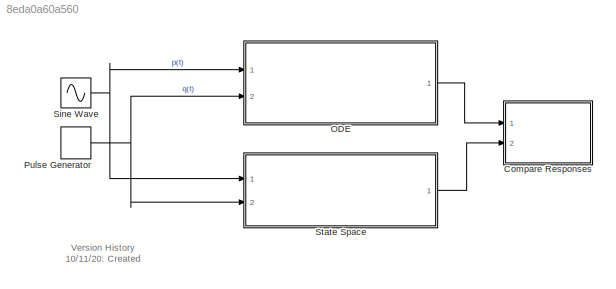
MODEL slx_8eda0a60a560
KIND model
CONFIG AbsTol = auto
CONFIG EnableMultiTasking = off
CONFIG FixedStep = auto
CONFIG MaxStep = auto
CONFIG MinStep = auto
CONFIG RelTol = 1e-3
CONFIG SampleTimeConstraint = Unconstrained
CONFIG Solver = VariableStepAuto
CONFIG SolverName = VariableStepAuto
CONFIG StartTime = 0.0
CONFIG StopTime = 1
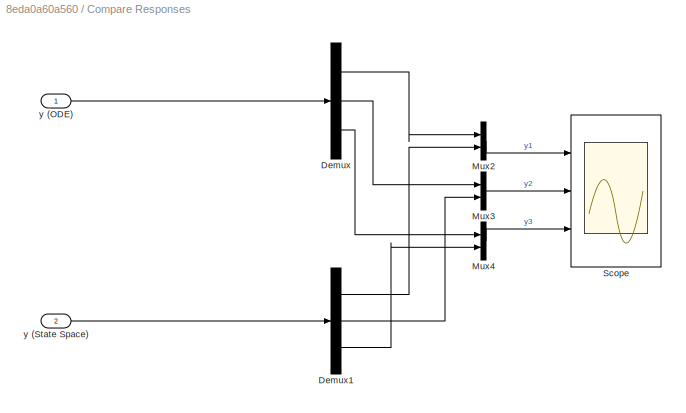
BLOCK [SubSystem] Compare Responses
  Ports = [2]
  RequestExecContextInheritance = off
BLOCK [Demux] Compare Responses/Demux
  DisplayOption = bar
  Outputs = 3
  Ports = [1, 3]
BLOCK [Demux] Compare Responses/Demux1
  DisplayOption = bar
  Outputs = 3
  Ports = [1, 3]
BLOCK [Mux] Compare Responses/Mux2
  DisplayOption = bar
  Inputs = 2
  Ports = [2, 1]
BLOCK [Mux] Compare Responses/Mux3
  DisplayOption = bar
  Inputs = 2
  Ports = [2, 1]
BLOCK [Mux] Compare Responses/Mux4
  DisplayOption = bar
  Inputs = 2
  Ports = [2, 1]
BLOCK [Scope] Compare Responses/Scope
  Floating = off
  NumInputPorts = 3
  Ports = [3]
  ScopeSpecificationString = Simulink.scopes.TimeScopeBlockCfg('CurrentConfiguration', extmgr.ConfigurationSet(extmgr.Configuration('Core','General UI',true),extmgr.Configuration('Core','Source UI',true),extmgr.Configuration('Sources','WiredSimulink',true),extmgr.Configuration('Visuals','Time Domain',true,'SerializedDisplays',{struct('MinYLimReal','0.85399','MaxYLimReal','2.31405','YLabelReal','','MinYLimMag','0.85399','MaxYL...<+2740ch>
BLOCK [Inport] Compare Responses/y (ODE)
  IconDisplay = Port number
BLOCK [Inport] Compare Responses/y (State Space)
  IconDisplay = Port number
  Port = 2
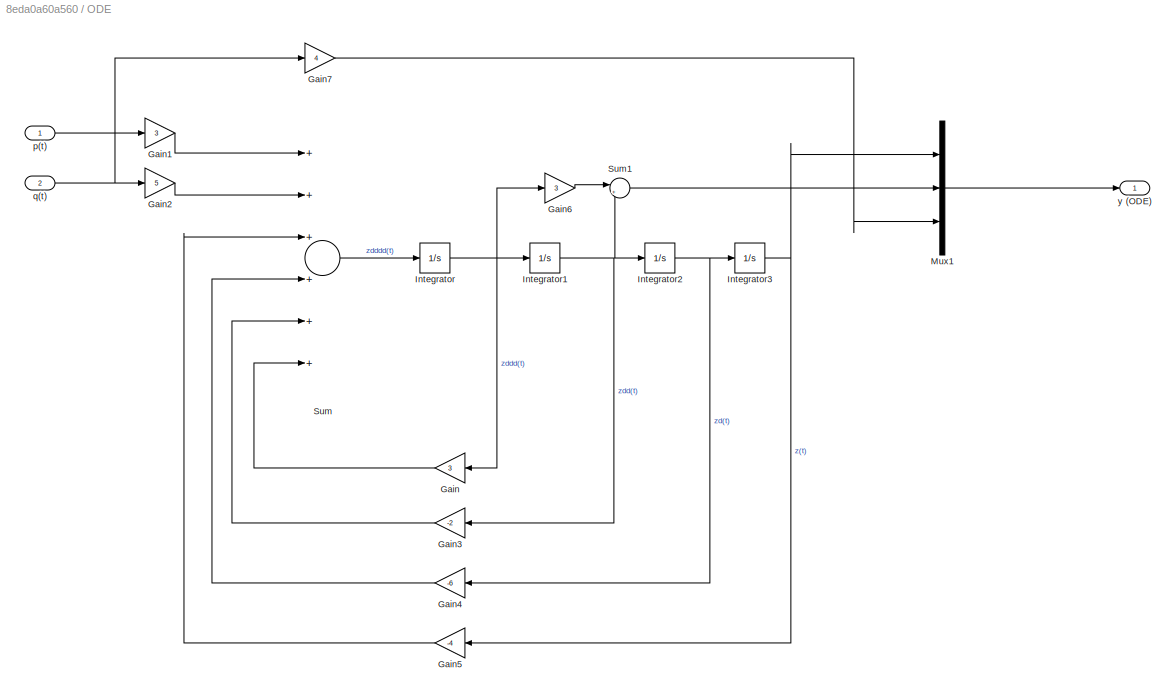
BLOCK [SubSystem] ODE
  Ports = [2, 1]
  RequestExecContextInheritance = off
BLOCK [Gain] ODE/Gain
  Gain = 3
  OutDataTypeStr = Inherit: Inherit via internal rule
  ParamDataTypeStr = Inherit: Inherit via internal rule
  SaturateOnIntegerOverflow = off
BLOCK [Gain] ODE/Gain1
  Gain = 3
  OutDataTypeStr = Inherit: Inherit via internal rule
  ParamDataTypeStr = Inherit: Inherit via internal rule
  SaturateOnIntegerOverflow = off
BLOCK [Gain] ODE/Gain2
  Gain = 5
  OutDataTypeStr = Inherit: Inherit via internal rule
  ParamDataTypeStr = Inherit: Inherit via internal rule
  SaturateOnIntegerOverflow = off
BLOCK [Gain] ODE/Gain3
  Gain = -2
  OutDataTypeStr = Inherit: Inherit via internal rule
  ParamDataTypeStr = Inherit: Inherit via internal rule
  SaturateOnIntegerOverflow = off
BLOCK [Gain] ODE/Gain4
  Gain = -6
  OutDataTypeStr = Inherit: Inherit via internal rule
  ParamDataTypeStr = Inherit: Inherit via internal rule
  SaturateOnIntegerOverflow = off
BLOCK [Gain] ODE/Gain5
  Gain = -4
  OutDataTypeStr = Inherit: Inherit via internal rule
  ParamDataTypeStr = Inherit: Inherit via internal rule
  SaturateOnIntegerOverflow = off
BLOCK [Gain] ODE/Gain6
  Gain = 3
  OutDataTypeStr = Inherit: Inherit via internal rule
  ParamDataTypeStr = Inherit: Inherit via internal rule
  SaturateOnIntegerOverflow = off
BLOCK [Gain] ODE/Gain7
  Gain = 4
  OutDataTypeStr = Inherit: Inherit via internal rule
  ParamDataTypeStr = Inherit: Inherit via internal rule
  SaturateOnIntegerOverflow = off
BLOCK [Integrator] ODE/Integrator
  InitialCondition = x0(4)
  Ports = [1, 1]
BLOCK [Integrator] ODE/Integrator1
  InitialCondition = x0(3)
  Ports = [1, 1]
BLOCK [Integrator] ODE/Integrator2
  InitialCondition = x0(2)
  Ports = [1, 1]
BLOCK [Integrator] ODE/Integrator3
  InitialCondition = x0(1)
  Ports = [1, 1]
BLOCK [Mux] ODE/Mux1
  DisplayOption = bar
  Inputs = 3
  Ports = [3, 1]
BLOCK [Sum] ODE/Sum
  InputSameDT = off
  Inputs = ++++++
  OutDataTypeStr = Inherit: Inherit via internal rule
  Ports = [6, 1]
  SaturateOnIntegerOverflow = off
BLOCK [Sum] ODE/Sum1
  IconShape = round
  InputSameDT = off
  Inputs = |++
  OutDataTypeStr = Inherit: Inherit via internal rule
  Ports = [2, 1]
  SaturateOnIntegerOverflow = off
BLOCK [Inport] ODE/p(t)
  IconDisplay = Port number
BLOCK [Inport] ODE/q(t)
  IconDisplay = Port number
  Port = 2
BLOCK [Outport] ODE/y (ODE)
  IconDisplay = Port number
BLOCK [DiscretePulseGenerator] Pulse Generator
  Period = 0.1
  Ports = [0, 1]
  PulseType = Time based
  PulseWidth = 25
BLOCK [Sin] Sine Wave
  Ports = [0, 1]
  SampleTime = 0
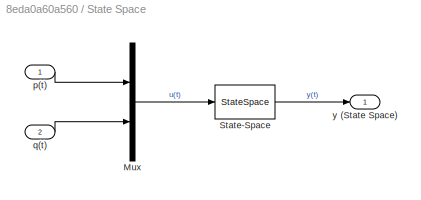
BLOCK [SubSystem] State Space
  Ports = [2, 1]
  RequestExecContextInheritance = off
BLOCK [Mux] State Space/Mux
  DisplayOption = bar
  Inputs = 2
  Ports = [2, 1]
BLOCK [StateSpace] State Space/State-Space
  A = A
  B = B
  C = C
  D = D
  InitialCondition = x0
  Ports = [1, 1]
BLOCK [Inport] State Space/p(t)
  IconDisplay = Port number
BLOCK [Inport] State Space/q(t)
  IconDisplay = Port number
  Port = 2
BLOCK [Outport] State Space/y (State Space)
  IconDisplay = Port number
ANNOTATION (root): Version History 10/11/20: Created
LINE Compare Responses/Demux1:1 -> Compare Responses/Mux2:2
LINE Compare Responses/Demux1:2 -> Compare Responses/Mux3:2
LINE Compare Responses/Demux1:3 -> Compare Responses/Mux4:2
LINE Compare Responses/Demux:1 -> Compare Responses/Mux2:1
LINE Compare Responses/Demux:2 -> Compare Responses/Mux3:1
LINE Compare Responses/Demux:3 -> Compare Responses/Mux4:1
LINE Compare Responses/Mux2:1 -> Compare Responses/Scope:1
LINE Compare Responses/Mux3:1 -> Compare Responses/Scope:2
LINE Compare Responses/Mux4:1 -> Compare Responses/Scope:3
LINE Compare Responses/y (ODE):1 -> Compare Responses/Demux:1
LINE Compare Responses/y (State Space):1 -> Compare Responses/Demux1:1
LINE ODE/Gain1:1 -> ODE/Sum:1
LINE ODE/Gain2:1 -> ODE/Sum:2
LINE ODE/Gain3:1 -> ODE/Sum:5
LINE ODE/Gain4:1 -> ODE/Sum:4
LINE ODE/Gain5:1 -> ODE/Sum:3
LINE ODE/Gain6:1 -> ODE/Sum1:1
LINE ODE/Gain7:1 -> ODE/Mux1:3
LINE ODE/Gain:1 -> ODE/Sum:6
NET ODE/Integrator1:1 -> ODE/Gain3:1, ODE/Integrator2:1, ODE/Sum1:2
NET ODE/Integrator2:1 -> ODE/Gain4:1, ODE/Integrator3:1
NET ODE/Integrator3:1 -> ODE/Gain5:1, ODE/Mux1:1
NET ODE/Integrator:1 -> ODE/Gain6:1, ODE/Gain:1, ODE/Integrator1:1
LINE ODE/Mux1:1 -> ODE/y (ODE):1
LINE ODE/Sum1:1 -> ODE/Mux1:2
LINE ODE/Sum:1 -> ODE/Integrator:1
LINE ODE/p(t):1 -> ODE/Gain1:1
NET ODE/q(t):1 -> ODE/Gain2:1, ODE/Gain7:1
LINE ODE:1 -> Compare Responses:1
NET Pulse Generator:1 -> ODE:2, State Space:2
NET Sine Wave:1 -> ODE:1, State Space:1
LINE State Space/Mux:1 -> State Space/State-Space:1
LINE State Space/State-Space:1 -> State Space/y (State Space):1
LINE State Space/p(t):1 -> State Space/Mux:1
LINE State Space/q(t):1 -> State Space/Mux:2
LINE State Space:1 -> Compare Responses:2
note: NET lines group one-source signal fan-out (src -> all destinations, sorted); 1:1 wires keep LINE
